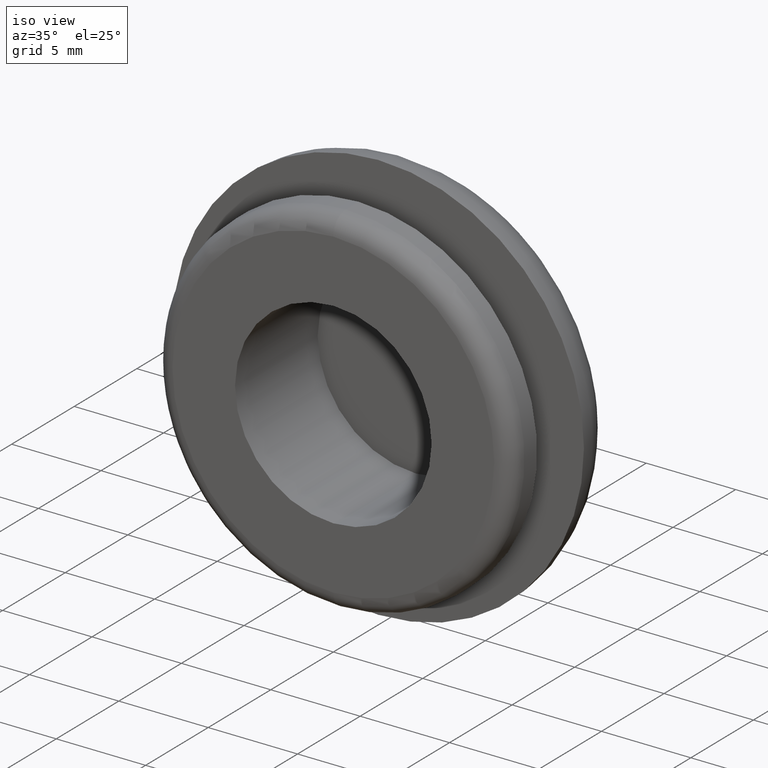
[diagram: clean part render]
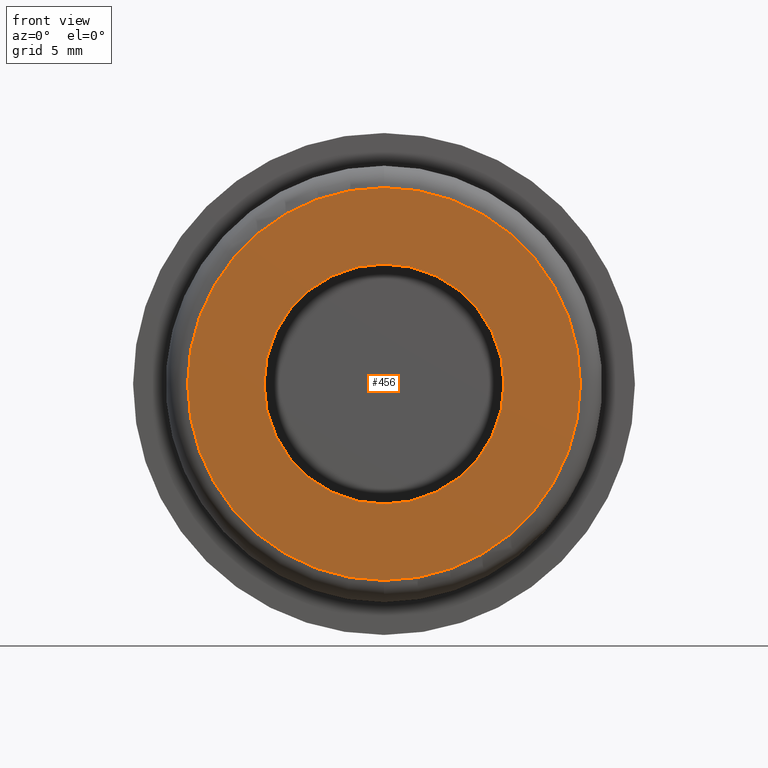
[diagram: tour spotlight — one face highlighted and labeled with its STEP entity id]
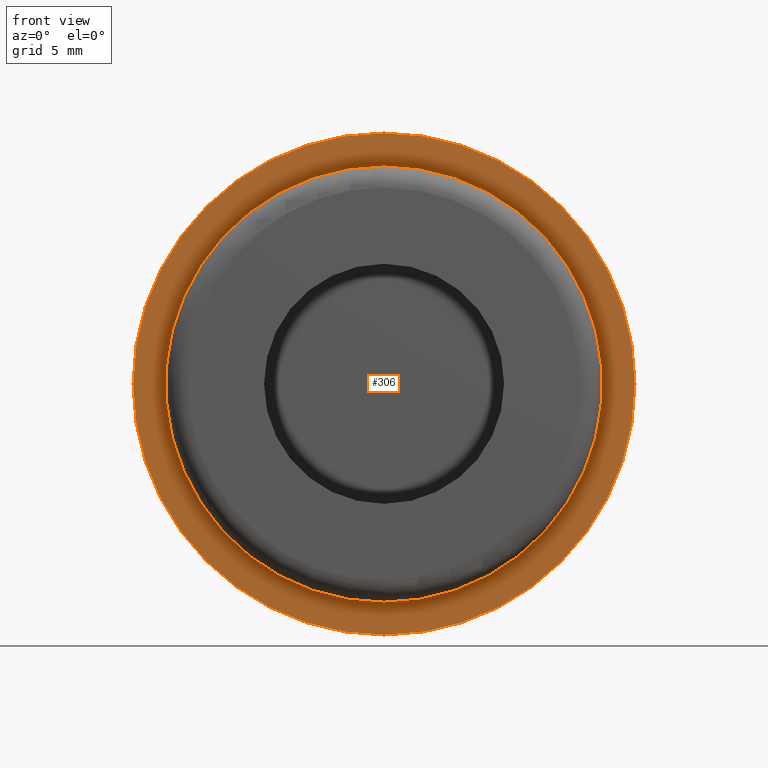
[diagram: tour spotlight — one face highlighted and labeled with its STEP entity id]
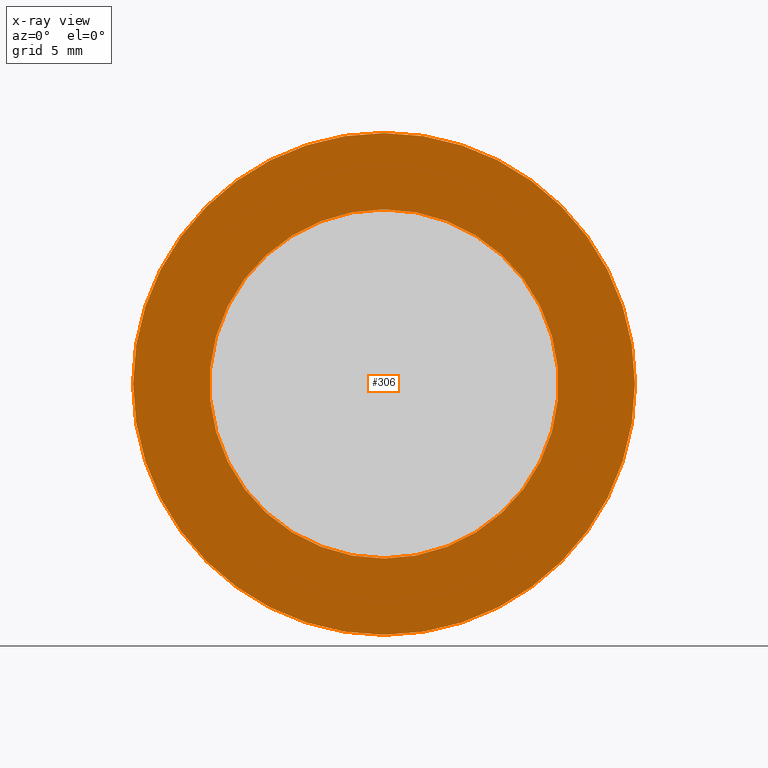
[diagram: x-ray of the same camera — body ghosted, this tour face saturated]
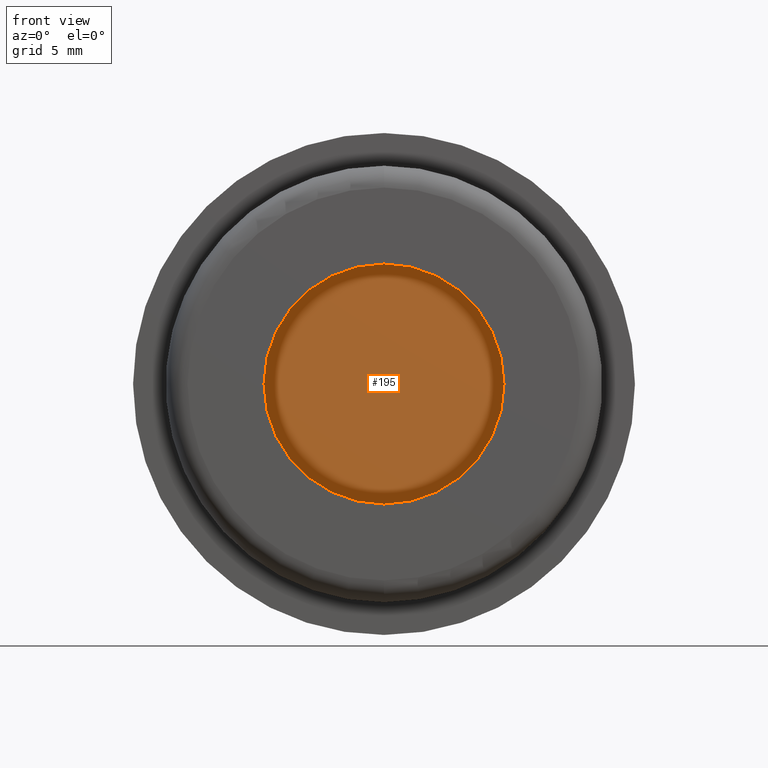
[diagram: tour spotlight — one face highlighted and labeled with its STEP entity id]
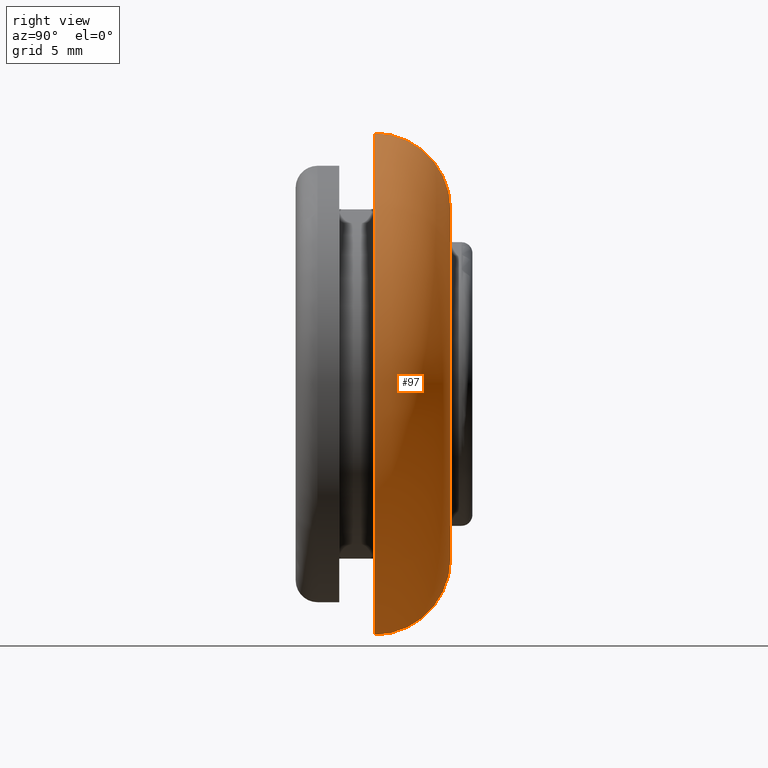
[diagram: tour spotlight — one face highlighted and labeled with its STEP entity id]
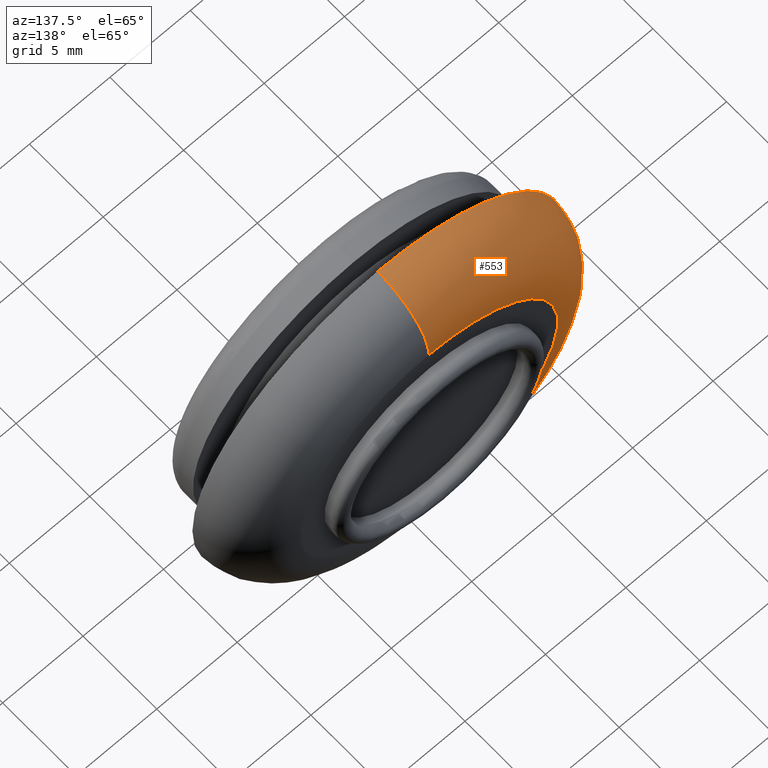
[diagram: tour spotlight — one face highlighted and labeled with its STEP entity id]
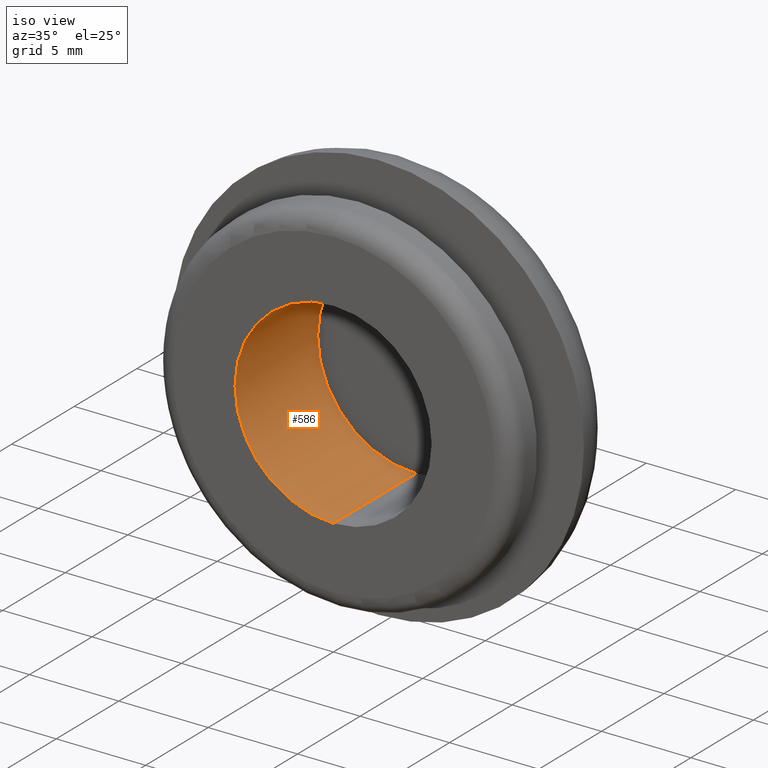
[diagram: tour spotlight — one face highlighted and labeled with its STEP entity id]
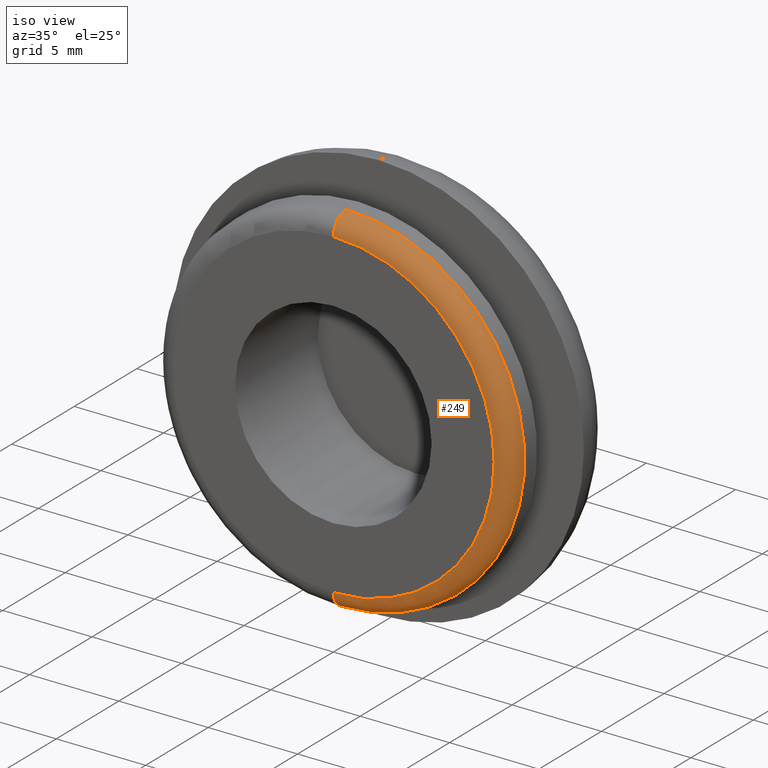
[diagram: tour spotlight — one face highlighted and labeled with its STEP entity id]
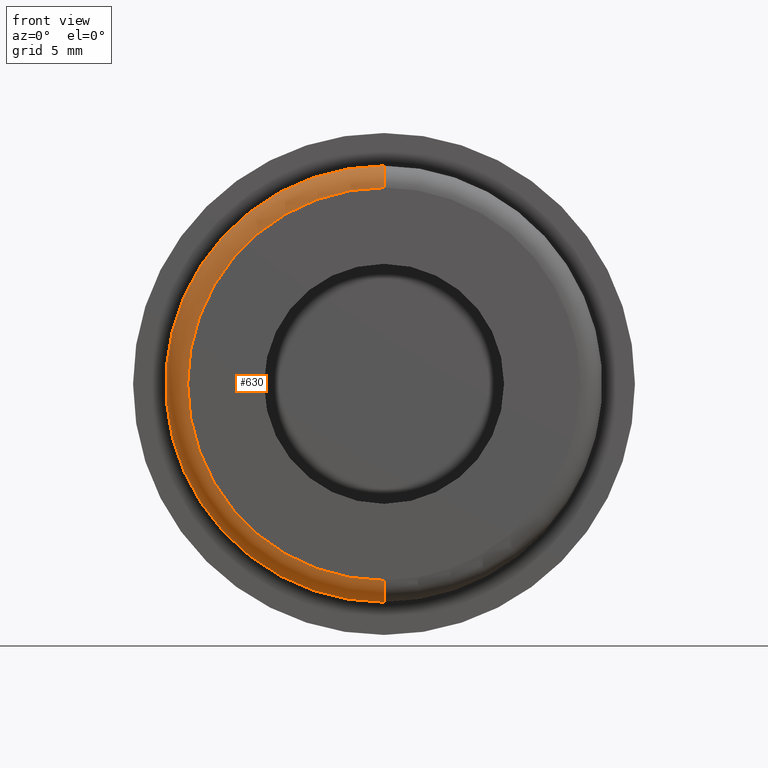
[diagram: tour spotlight — one face highlighted and labeled with its STEP entity id]
A machine part: a face-by-face anatomy tour. The part has 22 B-rep faces; the first image is the clean iso view, then the 8 largest visible faces are spotlighted one at a time (largest first), each with its STEP entity span.

Face 1 — front view, entity #456. In plain terms, the highlighted planar face has unit normal (0, 1, 0).
Definition (entity closure, byte-faithful):
#13 = VERTEX_POINT ( 'NONE', #604 ) ;
#21 = DIRECTION ( 'NONE',  ( 0.0000000000000000000, -1.000000000000000000, 0.0000000000000000000 ) ) ;
#54 = AXIS2_PLACEMENT_3D ( 'NONE', #129, #480, #71 ) ;
#62 = CARTESIAN_POINT ( 'NONE',  ( 0.0000000000000000000, -1.010300241903460100E-015, -3.061515884555945100E-016 ) ) ;
#71 = DIRECTION ( 'NONE',  ( 0.0000000000000000000, 0.0000000000000000000, -1.000000000000000000 ) ) ;
#100 = DIRECTION ( 'NONE',  ( 0.0000000000000000000, -1.000000000000000000, 0.0000000000000000000 ) ) ;
#121 = AXIS2_PLACEMENT_3D ( 'NONE', #531, #432, #125 ) ;
#125 = DIRECTION ( 'NONE',  ( 0.0000000000000000000, 0.0000000000000000000, -1.000000000000000000 ) ) ;
#129 = CARTESIAN_POINT ( 'NONE',  ( 0.0000000000000000000, -1.665334536937735000E-015, -3.061515884555945100E-016 ) ) ;
#135 = DIRECTION ( 'NONE',  ( 0.0000000000000000000, 0.0000000000000000000, 1.000000000000000000 ) ) ;
#136 = CIRCLE ( 'NONE', #54, 9.000000000000000000 ) ;
#196 = CARTESIAN_POINT ( 'NONE',  ( 0.0000000000000000000, -1.010300241903460100E-015, -3.061515884555945100E-016 ) ) ;
#197 = AXIS2_PLACEMENT_3D ( 'NONE', #196, #100, #361 ) ;
#225 = VERTEX_POINT ( 'NONE', #240 ) ;
#232 = CARTESIAN_POINT ( 'NONE',  ( 0.0000000000000000000, -1.337817389420598000E-015, 9.000000000000000000 ) ) ;
#240 = CARTESIAN_POINT ( 'NONE',  ( 0.0000000000000000000, -1.665334536937735000E-015, -9.000000000000000000 ) ) ;
#243 = VERTEX_POINT ( 'NONE', #535 ) ;
#252 = EDGE_CURVE ( 'NONE', #243, #13, #373, .T. ) ;
#261 = AXIS2_PLACEMENT_3D ( 'NONE', #62, #21, #383 ) ;
#271 = EDGE_LOOP ( 'NONE', ( #371, #609 ) ) ;
#275 = VERTEX_POINT ( 'NONE', #305 ) ;
#300 = ORIENTED_EDGE ( 'NONE', *, *, #252, .F. ) ;
#305 = CARTESIAN_POINT ( 'NONE',  ( 1.163414459189985300E-015, -1.665334536937735000E-015, 9.000000000000000000 ) ) ;
#313 = EDGE_LOOP ( 'NONE', ( #300, #481 ) ) ;
#361 = DIRECTION ( 'NONE',  ( 0.0000000000000000000, 0.0000000000000000000, -1.000000000000000000 ) ) ;
#363 = EDGE_CURVE ( 'NONE', #225, #275, #136, .T. ) ;
#370 = AXIS2_PLACEMENT_3D ( 'NONE', #232, #442, #135 ) ;
#371 = ORIENTED_EDGE ( 'NONE', *, *, #363, .T. ) ;
#373 = CIRCLE ( 'NONE', #197, 5.500000000000000000 ) ;
#379 = CIRCLE ( 'NONE', #261, 5.500000000000000000 ) ;
#383 = DIRECTION ( 'NONE',  ( 0.0000000000000000000, 0.0000000000000000000, -1.000000000000000000 ) ) ;
#394 = EDGE_CURVE ( 'NONE', #275, #225, #540, .T. ) ;
#416 = FACE_OUTER_BOUND ( 'NONE', #271, .T. ) ;
#424 = EDGE_CURVE ( 'NONE', #13, #243, #379, .T. ) ;
#429 = PLANE ( 'NONE',  #370 ) ;
#432 = DIRECTION ( 'NONE',  ( 0.0000000000000000000, -1.000000000000000000, 0.0000000000000000000 ) ) ;
#442 = DIRECTION ( 'NONE',  ( 0.0000000000000000000, 1.000000000000000000, 0.0000000000000000000 ) ) ;
#456 = ADVANCED_FACE ( 'NONE', ( #612, #416 ), #429, .F. ) ;
#480 = DIRECTION ( 'NONE',  ( 0.0000000000000000000, -1.000000000000000000, 0.0000000000000000000 ) ) ;
#481 = ORIENTED_EDGE ( 'NONE', *, *, #424, .F. ) ;
#531 = CARTESIAN_POINT ( 'NONE',  ( 0.0000000000000000000, -1.665334536937735000E-015, -3.061515884555945100E-016 ) ) ;
#535 = CARTESIAN_POINT ( 'NONE',  ( 0.0000000000000000000, -1.010300241903460100E-015, -5.500000000000000000 ) ) ;
#540 = CIRCLE ( 'NONE', #121, 9.000000000000000000 ) ;
#604 = CARTESIAN_POINT ( 'NONE',  ( 6.735557395310442000E-016, -1.010300241903460100E-015, 5.500000000000000000 ) ) ;
#609 = ORIENTED_EDGE ( 'NONE', *, *, #394, .T. ) ;
#612 = FACE_BOUND ( 'NONE', #313, .T. ) ;

Face 2 — front view, entity #306. An x-ray twin of the same camera follows (body ghosted, this face saturated) — the face is partly hidden behind the body. In plain terms, the highlighted planar face has unit normal (0, 1, 0).
Definition (entity closure, byte-faithful):
#3 = DIRECTION ( 'NONE',  ( 0.0000000000000000000, -1.000000000000000000, 0.0000000000000000000 ) ) ;
#25 = DIRECTION ( 'NONE',  ( 0.0000000000000000000, 0.0000000000000000000, -1.000000000000000000 ) ) ;
#26 = CARTESIAN_POINT ( 'NONE',  ( 1.408343819019456400E-015, 3.600000000000000100, 11.50000000000000000 ) ) ;
#39 = CARTESIAN_POINT ( 'NONE',  ( 0.0000000000000000000, 3.600000000000000100, -8.000000000000000000 ) ) ;
#70 = CARTESIAN_POINT ( 'NONE',  ( 0.0000000000000000000, 3.600000000000000100, -3.061515884555945100E-016 ) ) ;
#73 = DIRECTION ( 'NONE',  ( 0.0000000000000000000, -1.000000000000000000, 0.0000000000000000000 ) ) ;
#90 = EDGE_LOOP ( 'NONE', ( #558, #128 ) ) ;
#93 = DIRECTION ( 'NONE',  ( 0.0000000000000000000, -1.000000000000000000, 0.0000000000000000000 ) ) ;
#108 = VERTEX_POINT ( 'NONE', #560 ) ;
#112 = CIRCLE ( 'NONE', #162, 11.50000000000000000 ) ;
#114 = AXIS2_PLACEMENT_3D ( 'NONE', #408, #93, #453 ) ;
#128 = ORIENTED_EDGE ( 'NONE', *, *, #573, .F. ) ;
#132 = DIRECTION ( 'NONE',  ( 0.0000000000000000000, 1.000000000000000000, 0.0000000000000000000 ) ) ;
#145 = AXIS2_PLACEMENT_3D ( 'NONE', #309, #3, #245 ) ;
#162 = AXIS2_PLACEMENT_3D ( 'NONE', #70, #385, #25 ) ;
#168 = CIRCLE ( 'NONE', #114, 8.000000000000000000 ) ;
#182 = DIRECTION ( 'NONE',  ( 0.0000000000000000000, 0.0000000000000000000, 1.000000000000000000 ) ) ;
#210 = ORIENTED_EDGE ( 'NONE', *, *, #265, .T. ) ;
#227 = EDGE_CURVE ( 'NONE', #376, #108, #112, .T. ) ;
#241 = PLANE ( 'NONE',  #471 ) ;
#245 = DIRECTION ( 'NONE',  ( 0.0000000000000000000, 0.0000000000000000000, -1.000000000000000000 ) ) ;
#248 = CIRCLE ( 'NONE', #268, 11.50000000000000000 ) ;
#265 = EDGE_CURVE ( 'NONE', #108, #376, #248, .T. ) ;
#268 = AXIS2_PLACEMENT_3D ( 'NONE', #436, #73, #578 ) ;
#277 = CIRCLE ( 'NONE', #145, 8.000000000000000000 ) ;
#306 = ADVANCED_FACE ( 'NONE', ( #482, #470 ), #241, .F. ) ;
#309 = CARTESIAN_POINT ( 'NONE',  ( 0.0000000000000000000, 3.600000000000000100, -3.061515884555945100E-016 ) ) ;
#326 = EDGE_LOOP ( 'NONE', ( #210, #521 ) ) ;
#346 = VERTEX_POINT ( 'NONE', #39 ) ;
#376 = VERTEX_POINT ( 'NONE', #26 ) ;
#385 = DIRECTION ( 'NONE',  ( 0.0000000000000000000, -1.000000000000000000, 0.0000000000000000000 ) ) ;
#408 = CARTESIAN_POINT ( 'NONE',  ( 0.0000000000000000000, 3.600000000000000100, -3.061515884555945100E-016 ) ) ;
#436 = CARTESIAN_POINT ( 'NONE',  ( 0.0000000000000000000, 3.600000000000000100, -3.061515884555945100E-016 ) ) ;
#446 = CARTESIAN_POINT ( 'NONE',  ( 9.797174393178825700E-016, 3.600000000000000100, 8.000000000000000000 ) ) ;
#453 = DIRECTION ( 'NONE',  ( 0.0000000000000000000, 0.0000000000000000000, -1.000000000000000000 ) ) ;
#470 = FACE_OUTER_BOUND ( 'NONE', #326, .T. ) ;
#471 = AXIS2_PLACEMENT_3D ( 'NONE', #635, #132, #182 ) ;
#482 = FACE_BOUND ( 'NONE', #90, .T. ) ;
#497 = VERTEX_POINT ( 'NONE', #446 ) ;
#521 = ORIENTED_EDGE ( 'NONE', *, *, #227, .T. ) ;
#558 = ORIENTED_EDGE ( 'NONE', *, *, #624, .F. ) ;
#560 = CARTESIAN_POINT ( 'NONE',  ( 0.0000000000000000000, 3.600000000000000100, -11.50000000000000000 ) ) ;
#573 = EDGE_CURVE ( 'NONE', #497, #346, #168, .T. ) ;
#578 = DIRECTION ( 'NONE',  ( 0.0000000000000000000, 0.0000000000000000000, -1.000000000000000000 ) ) ;
#624 = EDGE_CURVE ( 'NONE', #346, #497, #277, .T. ) ;
#635 = CARTESIAN_POINT ( 'NONE',  ( 0.0000000000000000000, 3.600000000000000100, 11.50000000000000000 ) ) ;

Face 3 — front view, entity #195. In plain terms, the highlighted planar face has unit normal (0, 1, 0).
Definition (entity closure, byte-faithful):
#18 = EDGE_CURVE ( 'NONE', #155, #552, #526, .T. ) ;
#28 = DIRECTION ( 'NONE',  ( 0.0000000000000000000, 0.0000000000000000000, 1.000000000000000000 ) ) ;
#29 = CARTESIAN_POINT ( 'NONE',  ( 0.0000000000000000000, 6.599999999999999600, -3.061515884555945100E-016 ) ) ;
#36 = CARTESIAN_POINT ( 'NONE',  ( 0.0000000000000000000, 6.599999999999999600, -3.061515884555945100E-016 ) ) ;
#50 = PLANE ( 'NONE',  #246 ) ;
#52 = ORIENTED_EDGE ( 'NONE', *, *, #18, .T. ) ;
#123 = DIRECTION ( 'NONE',  ( 0.0000000000000000000, -1.000000000000000000, 0.0000000000000000000 ) ) ;
#155 = VERTEX_POINT ( 'NONE', #490 ) ;
#184 = AXIS2_PLACEMENT_3D ( 'NONE', #36, #445, #303 ) ;
#195 = ADVANCED_FACE ( 'NONE', ( #641 ), #50, .F. ) ;
#246 = AXIS2_PLACEMENT_3D ( 'NONE', #623, #279, #28 ) ;
#279 = DIRECTION ( 'NONE',  ( 0.0000000000000000000, 1.000000000000000000, 0.0000000000000000000 ) ) ;
#303 = DIRECTION ( 'NONE',  ( 0.0000000000000000000, 0.0000000000000000000, -1.000000000000000000 ) ) ;
#356 = EDGE_LOOP ( 'NONE', ( #52, #395 ) ) ;
#395 = ORIENTED_EDGE ( 'NONE', *, *, #536, .T. ) ;
#427 = AXIS2_PLACEMENT_3D ( 'NONE', #29, #123, #447 ) ;
#445 = DIRECTION ( 'NONE',  ( 0.0000000000000000000, -1.000000000000000000, 0.0000000000000000000 ) ) ;
#447 = DIRECTION ( 'NONE',  ( 0.0000000000000000000, 0.0000000000000000000, -1.000000000000000000 ) ) ;
#490 = CARTESIAN_POINT ( 'NONE',  ( 0.0000000000000000000, 6.599999999999999600, -5.500000000000000000 ) ) ;
#526 = CIRCLE ( 'NONE', #184, 5.500000000000000000 ) ;
#536 = EDGE_CURVE ( 'NONE', #552, #155, #605, .T. ) ;
#552 = VERTEX_POINT ( 'NONE', #637 ) ;
#605 = CIRCLE ( 'NONE', #427, 5.500000000000000000 ) ;
#623 = CARTESIAN_POINT ( 'NONE',  ( 0.0000000000000000000, 6.599999999999999600, 5.500000000000000000 ) ) ;
#637 = CARTESIAN_POINT ( 'NONE',  ( 6.735557395310442000E-016, 6.599999999999999600, 5.500000000000000000 ) ) ;
#641 = FACE_OUTER_BOUND ( 'NONE', #356, .T. ) ;

Face 4 — right view, entity #97. In plain terms, the highlighted toroidal blend (fillet) surface has major radius 8 mm and minor (blend) radius 3.5 mm.
Definition (entity closure, byte-faithful):
#26 = CARTESIAN_POINT ( 'NONE',  ( 1.408343819019456400E-015, 3.600000000000000100, 11.50000000000000000 ) ) ;
#37 = CARTESIAN_POINT ( 'NONE',  ( 0.0000000000000000000, 7.100000000000000500, -3.061515884555945100E-016 ) ) ;
#38 = DIRECTION ( 'NONE',  ( -1.224646799147353500E-016, 0.0000000000000000000, -1.000000000000000000 ) ) ;
#44 = ORIENTED_EDGE ( 'NONE', *, *, #265, .F. ) ;
#45 = VERTEX_POINT ( 'NONE', #150 ) ;
#65 = DIRECTION ( 'NONE',  ( 0.0000000000000000000, 0.0000000000000000000, -1.000000000000000000 ) ) ;
#73 = DIRECTION ( 'NONE',  ( 0.0000000000000000000, -1.000000000000000000, 0.0000000000000000000 ) ) ;
#78 = DIRECTION ( 'NONE',  ( -1.000000000000000000, -0.0000000000000000000, -0.0000000000000000000 ) ) ;
#82 = TOROIDAL_SURFACE ( 'NONE', #428, 8.000000000000000000, 3.500000000000000000 ) ;
#84 = DIRECTION ( 'NONE',  ( 0.0000000000000000000, 0.0000000000000000000, -1.000000000000000000 ) ) ;
#89 = CARTESIAN_POINT ( 'NONE',  ( 9.797174393178825700E-016, 3.600000000000000100, 8.000000000000000000 ) ) ;
#97 = ADVANCED_FACE ( 'NONE', ( #555 ), #82, .T. ) ;
#108 = VERTEX_POINT ( 'NONE', #560 ) ;
#109 = AXIS2_PLACEMENT_3D ( 'NONE', #222, #78, #390 ) ;
#118 = CIRCLE ( 'NONE', #321, 8.000000000000000000 ) ;
#124 = DIRECTION ( 'NONE',  ( 0.0000000000000000000, -1.000000000000000000, 0.0000000000000000000 ) ) ;
#133 = ORIENTED_EDGE ( 'NONE', *, *, #468, .T. ) ;
#150 = CARTESIAN_POINT ( 'NONE',  ( 1.194030629168669500E-015, 7.100000000000000500, 8.000000000000000000 ) ) ;
#190 = EDGE_CURVE ( 'NONE', #448, #108, #516, .T. ) ;
#222 = CARTESIAN_POINT ( 'NONE',  ( 0.0000000000000000000, 3.600000000000000100, -8.000000000000000000 ) ) ;
#248 = CIRCLE ( 'NONE', #268, 11.50000000000000000 ) ;
#265 = EDGE_CURVE ( 'NONE', #108, #376, #248, .T. ) ;
#267 = EDGE_LOOP ( 'NONE', ( #133, #493, #44, #421 ) ) ;
#268 = AXIS2_PLACEMENT_3D ( 'NONE', #436, #73, #578 ) ;
#302 = EDGE_CURVE ( 'NONE', #45, #376, #610, .T. ) ;
#321 = AXIS2_PLACEMENT_3D ( 'NONE', #37, #400, #84 ) ;
#325 = CARTESIAN_POINT ( 'NONE',  ( 0.0000000000000000000, 3.600000000000000100, 0.0000000000000000000 ) ) ;
#343 = AXIS2_PLACEMENT_3D ( 'NONE', #89, #402, #38 ) ;
#376 = VERTEX_POINT ( 'NONE', #26 ) ;
#378 = CARTESIAN_POINT ( 'NONE',  ( 0.0000000000000000000, 7.100000000000000500, -8.000000000000000000 ) ) ;
#390 = DIRECTION ( 'NONE',  ( 0.0000000000000000000, 0.0000000000000000000, 1.000000000000000000 ) ) ;
#400 = DIRECTION ( 'NONE',  ( 0.0000000000000000000, -1.000000000000000000, 0.0000000000000000000 ) ) ;
#402 = DIRECTION ( 'NONE',  ( 1.000000000000000000, 0.0000000000000000000, -1.224646799147353200E-016 ) ) ;
#421 = ORIENTED_EDGE ( 'NONE', *, *, #190, .F. ) ;
#428 = AXIS2_PLACEMENT_3D ( 'NONE', #325, #124, #65 ) ;
#436 = CARTESIAN_POINT ( 'NONE',  ( 0.0000000000000000000, 3.600000000000000100, -3.061515884555945100E-016 ) ) ;
#448 = VERTEX_POINT ( 'NONE', #378 ) ;
#468 = EDGE_CURVE ( 'NONE', #448, #45, #118, .T. ) ;
#493 = ORIENTED_EDGE ( 'NONE', *, *, #302, .T. ) ;
#516 = CIRCLE ( 'NONE', #109, 3.499999999999999600 ) ;
#555 = FACE_OUTER_BOUND ( 'NONE', #267, .T. ) ;
#560 = CARTESIAN_POINT ( 'NONE',  ( 0.0000000000000000000, 3.600000000000000100, -11.50000000000000000 ) ) ;
#578 = DIRECTION ( 'NONE',  ( 0.0000000000000000000, 0.0000000000000000000, -1.000000000000000000 ) ) ;
#610 = CIRCLE ( 'NONE', #343, 3.499999999999999600 ) ;

Face 5 — auxiliary view, entity #553. In plain terms, the highlighted toroidal blend (fillet) surface has major radius 8 mm and minor (blend) radius 3.5 mm.
Definition (entity closure, byte-faithful):
#10 = ORIENTED_EDGE ( 'NONE', *, *, #227, .F. ) ;
#11 = AXIS2_PLACEMENT_3D ( 'NONE', #476, #622, #591 ) ;
#25 = DIRECTION ( 'NONE',  ( 0.0000000000000000000, 0.0000000000000000000, -1.000000000000000000 ) ) ;
#26 = CARTESIAN_POINT ( 'NONE',  ( 1.408343819019456400E-015, 3.600000000000000100, 11.50000000000000000 ) ) ;
#38 = DIRECTION ( 'NONE',  ( -1.224646799147353500E-016, 0.0000000000000000000, -1.000000000000000000 ) ) ;
#45 = VERTEX_POINT ( 'NONE', #150 ) ;
#59 = TOROIDAL_SURFACE ( 'NONE', #11, 8.000000000000000000, 3.500000000000000000 ) ;
#70 = CARTESIAN_POINT ( 'NONE',  ( 0.0000000000000000000, 3.600000000000000100, -3.061515884555945100E-016 ) ) ;
#78 = DIRECTION ( 'NONE',  ( -1.000000000000000000, -0.0000000000000000000, -0.0000000000000000000 ) ) ;
#79 = EDGE_CURVE ( 'NONE', #45, #448, #154, .T. ) ;
#89 = CARTESIAN_POINT ( 'NONE',  ( 9.797174393178825700E-016, 3.600000000000000100, 8.000000000000000000 ) ) ;
#108 = VERTEX_POINT ( 'NONE', #560 ) ;
#109 = AXIS2_PLACEMENT_3D ( 'NONE', #222, #78, #390 ) ;
#112 = CIRCLE ( 'NONE', #162, 11.50000000000000000 ) ;
#150 = CARTESIAN_POINT ( 'NONE',  ( 1.194030629168669500E-015, 7.100000000000000500, 8.000000000000000000 ) ) ;
#154 = CIRCLE ( 'NONE', #322, 8.000000000000000000 ) ;
#159 = EDGE_LOOP ( 'NONE', ( #513, #539, #219, #10 ) ) ;
#162 = AXIS2_PLACEMENT_3D ( 'NONE', #70, #385, #25 ) ;
#190 = EDGE_CURVE ( 'NONE', #448, #108, #516, .T. ) ;
#219 = ORIENTED_EDGE ( 'NONE', *, *, #190, .T. ) ;
#222 = CARTESIAN_POINT ( 'NONE',  ( 0.0000000000000000000, 3.600000000000000100, -8.000000000000000000 ) ) ;
#227 = EDGE_CURVE ( 'NONE', #376, #108, #112, .T. ) ;
#302 = EDGE_CURVE ( 'NONE', #45, #376, #610, .T. ) ;
#322 = AXIS2_PLACEMENT_3D ( 'NONE', #478, #331, #345 ) ;
#331 = DIRECTION ( 'NONE',  ( 0.0000000000000000000, -1.000000000000000000, 0.0000000000000000000 ) ) ;
#343 = AXIS2_PLACEMENT_3D ( 'NONE', #89, #402, #38 ) ;
#345 = DIRECTION ( 'NONE',  ( 0.0000000000000000000, 0.0000000000000000000, -1.000000000000000000 ) ) ;
#376 = VERTEX_POINT ( 'NONE', #26 ) ;
#378 = CARTESIAN_POINT ( 'NONE',  ( 0.0000000000000000000, 7.100000000000000500, -8.000000000000000000 ) ) ;
#385 = DIRECTION ( 'NONE',  ( 0.0000000000000000000, -1.000000000000000000, 0.0000000000000000000 ) ) ;
#390 = DIRECTION ( 'NONE',  ( 0.0000000000000000000, 0.0000000000000000000, 1.000000000000000000 ) ) ;
#402 = DIRECTION ( 'NONE',  ( 1.000000000000000000, 0.0000000000000000000, -1.224646799147353200E-016 ) ) ;
#448 = VERTEX_POINT ( 'NONE', #378 ) ;
#476 = CARTESIAN_POINT ( 'NONE',  ( 0.0000000000000000000, 3.600000000000000100, 0.0000000000000000000 ) ) ;
#478 = CARTESIAN_POINT ( 'NONE',  ( 0.0000000000000000000, 7.100000000000000500, -3.061515884555945100E-016 ) ) ;
#513 = ORIENTED_EDGE ( 'NONE', *, *, #302, .F. ) ;
#516 = CIRCLE ( 'NONE', #109, 3.499999999999999600 ) ;
#539 = ORIENTED_EDGE ( 'NONE', *, *, #79, .T. ) ;
#553 = ADVANCED_FACE ( 'NONE', ( #575 ), #59, .T. ) ;
#560 = CARTESIAN_POINT ( 'NONE',  ( 0.0000000000000000000, 3.600000000000000100, -11.50000000000000000 ) ) ;
#575 = FACE_OUTER_BOUND ( 'NONE', #159, .T. ) ;
#591 = DIRECTION ( 'NONE',  ( 0.0000000000000000000, 0.0000000000000000000, -1.000000000000000000 ) ) ;
#610 = CIRCLE ( 'NONE', #343, 3.499999999999999600 ) ;
#622 = DIRECTION ( 'NONE',  ( 0.0000000000000000000, -1.000000000000000000, 0.0000000000000000000 ) ) ;

Face 6 — iso view, entity #586. In plain terms, the highlighted cylindrical surface (partial cylindrical patch) has radius 5.5 mm, axis along (0, -1, 0).
Definition (entity closure, byte-faithful):
#13 = VERTEX_POINT ( 'NONE', #604 ) ;
#21 = DIRECTION ( 'NONE',  ( 0.0000000000000000000, -1.000000000000000000, 0.0000000000000000000 ) ) ;
#29 = CARTESIAN_POINT ( 'NONE',  ( 0.0000000000000000000, 6.599999999999999600, -3.061515884555945100E-016 ) ) ;
#62 = CARTESIAN_POINT ( 'NONE',  ( 0.0000000000000000000, -1.010300241903460100E-015, -3.061515884555945100E-016 ) ) ;
#123 = DIRECTION ( 'NONE',  ( 0.0000000000000000000, -1.000000000000000000, 0.0000000000000000000 ) ) ;
#139 = DIRECTION ( 'NONE',  ( 0.0000000000000000000, 0.0000000000000000000, -1.000000000000000000 ) ) ;
#143 = DIRECTION ( 'NONE',  ( 0.0000000000000000000, -1.000000000000000000, 0.0000000000000000000 ) ) ;
#155 = VERTEX_POINT ( 'NONE', #490 ) ;
#157 = CYLINDRICAL_SURFACE ( 'NONE', #213, 5.500000000000000000 ) ;
#165 = DIRECTION ( 'NONE',  ( 0.0000000000000000000, -1.000000000000000000, 0.0000000000000000000 ) ) ;
#191 = EDGE_LOOP ( 'NONE', ( #452, #636, #488, #518 ) ) ;
#213 = AXIS2_PLACEMENT_3D ( 'NONE', #549, #638, #139 ) ;
#243 = VERTEX_POINT ( 'NONE', #535 ) ;
#261 = AXIS2_PLACEMENT_3D ( 'NONE', #62, #21, #383 ) ;
#323 = VECTOR ( 'NONE', #143, 1000.000000000000000 ) ;
#332 = EDGE_CURVE ( 'NONE', #155, #243, #337, .T. ) ;
#337 = LINE ( 'NONE', #538, #359 ) ;
#359 = VECTOR ( 'NONE', #165, 1000.000000000000000 ) ;
#379 = CIRCLE ( 'NONE', #261, 5.500000000000000000 ) ;
#383 = DIRECTION ( 'NONE',  ( 0.0000000000000000000, 0.0000000000000000000, -1.000000000000000000 ) ) ;
#424 = EDGE_CURVE ( 'NONE', #13, #243, #379, .T. ) ;
#427 = AXIS2_PLACEMENT_3D ( 'NONE', #29, #123, #447 ) ;
#430 = LINE ( 'NONE', #498, #323 ) ;
#447 = DIRECTION ( 'NONE',  ( 0.0000000000000000000, 0.0000000000000000000, -1.000000000000000000 ) ) ;
#449 = FACE_OUTER_BOUND ( 'NONE', #191, .T. ) ;
#452 = ORIENTED_EDGE ( 'NONE', *, *, #536, .F. ) ;
#488 = ORIENTED_EDGE ( 'NONE', *, *, #424, .T. ) ;
#490 = CARTESIAN_POINT ( 'NONE',  ( 0.0000000000000000000, 6.599999999999999600, -5.500000000000000000 ) ) ;
#498 = CARTESIAN_POINT ( 'NONE',  ( 6.735557395310442000E-016, 0.0000000000000000000, 5.500000000000000000 ) ) ;
#518 = ORIENTED_EDGE ( 'NONE', *, *, #332, .F. ) ;
#535 = CARTESIAN_POINT ( 'NONE',  ( 0.0000000000000000000, -1.010300241903460100E-015, -5.500000000000000000 ) ) ;
#536 = EDGE_CURVE ( 'NONE', #552, #155, #605, .T. ) ;
#538 = CARTESIAN_POINT ( 'NONE',  ( 0.0000000000000000000, 0.0000000000000000000, -5.500000000000000000 ) ) ;
#549 = CARTESIAN_POINT ( 'NONE',  ( 0.0000000000000000000, 0.0000000000000000000, -3.061515884555945100E-016 ) ) ;
#552 = VERTEX_POINT ( 'NONE', #637 ) ;
#586 = ADVANCED_FACE ( 'NONE', ( #449 ), #157, .F. ) ;
#597 = EDGE_CURVE ( 'NONE', #552, #13, #430, .T. ) ;
#604 = CARTESIAN_POINT ( 'NONE',  ( 6.735557395310442000E-016, -1.010300241903460100E-015, 5.500000000000000000 ) ) ;
#605 = CIRCLE ( 'NONE', #427, 5.500000000000000000 ) ;
#636 = ORIENTED_EDGE ( 'NONE', *, *, #597, .T. ) ;
#637 = CARTESIAN_POINT ( 'NONE',  ( 6.735557395310442000E-016, 6.599999999999999600, 5.500000000000000000 ) ) ;
#638 = DIRECTION ( 'NONE',  ( 0.0000000000000000000, -1.000000000000000000, 0.0000000000000000000 ) ) ;

Face 7 — iso view, entity #249. In plain terms, the highlighted toroidal blend (fillet) surface has major radius 9 mm and minor (blend) radius 1 mm.
Definition (entity closure, byte-faithful):
#1 = VERTEX_POINT ( 'NONE', #2 ) ;
#2 = CARTESIAN_POINT ( 'NONE',  ( 0.0000000000000000000, 1.000000000000000000, -10.00000000000000000 ) ) ;
#51 = CARTESIAN_POINT ( 'NONE',  ( 1.102182119232617700E-015, 1.000000000000000000, 9.000000000000000000 ) ) ;
#53 = DIRECTION ( 'NONE',  ( 0.0000000000000000000, 0.0000000000000000000, -1.000000000000000000 ) ) ;
#54 = AXIS2_PLACEMENT_3D ( 'NONE', #129, #480, #71 ) ;
#67 = AXIS2_PLACEMENT_3D ( 'NONE', #231, #130, #171 ) ;
#71 = DIRECTION ( 'NONE',  ( 0.0000000000000000000, 0.0000000000000000000, -1.000000000000000000 ) ) ;
#98 = DIRECTION ( 'NONE',  ( 0.0000000000000000000, -1.000000000000000000, 0.0000000000000000000 ) ) ;
#127 = EDGE_CURVE ( 'NONE', #1, #272, #297, .T. ) ;
#129 = CARTESIAN_POINT ( 'NONE',  ( 0.0000000000000000000, -1.665334536937735000E-015, -3.061515884555945100E-016 ) ) ;
#130 = DIRECTION ( 'NONE',  ( -1.000000000000000000, -0.0000000000000000000, -0.0000000000000000000 ) ) ;
#136 = CIRCLE ( 'NONE', #54, 9.000000000000000000 ) ;
#171 = DIRECTION ( 'NONE',  ( 0.0000000000000000000, 0.0000000000000000000, 1.000000000000000000 ) ) ;
#179 = DIRECTION ( 'NONE',  ( -1.224646799147353500E-016, 0.0000000000000000000, -1.000000000000000000 ) ) ;
#192 = EDGE_CURVE ( 'NONE', #1, #225, #410, .T. ) ;
#198 = CARTESIAN_POINT ( 'NONE',  ( 1.224646799147353300E-015, 1.000000000000000000, 10.00000000000000000 ) ) ;
#225 = VERTEX_POINT ( 'NONE', #240 ) ;
#231 = CARTESIAN_POINT ( 'NONE',  ( 0.0000000000000000000, 1.000000000000000000, -9.000000000000000000 ) ) ;
#236 = AXIS2_PLACEMENT_3D ( 'NONE', #338, #435, #515 ) ;
#240 = CARTESIAN_POINT ( 'NONE',  ( 0.0000000000000000000, -1.665334536937735000E-015, -9.000000000000000000 ) ) ;
#249 = ADVANCED_FACE ( 'NONE', ( #621 ), #500, .T. ) ;
#272 = VERTEX_POINT ( 'NONE', #198 ) ;
#275 = VERTEX_POINT ( 'NONE', #305 ) ;
#286 = AXIS2_PLACEMENT_3D ( 'NONE', #51, #646, #179 ) ;
#297 = CIRCLE ( 'NONE', #527, 10.00000000000000000 ) ;
#305 = CARTESIAN_POINT ( 'NONE',  ( 1.163414459189985300E-015, -1.665334536937735000E-015, 9.000000000000000000 ) ) ;
#334 = ORIENTED_EDGE ( 'NONE', *, *, #127, .T. ) ;
#338 = CARTESIAN_POINT ( 'NONE',  ( 0.0000000000000000000, 1.000000000000000000, 0.0000000000000000000 ) ) ;
#363 = EDGE_CURVE ( 'NONE', #225, #275, #136, .T. ) ;
#407 = ORIENTED_EDGE ( 'NONE', *, *, #363, .F. ) ;
#410 = CIRCLE ( 'NONE', #67, 0.9999999999999991100 ) ;
#435 = DIRECTION ( 'NONE',  ( 0.0000000000000000000, -1.000000000000000000, 0.0000000000000000000 ) ) ;
#454 = CARTESIAN_POINT ( 'NONE',  ( 0.0000000000000000000, 1.000000000000000000, -3.061515884555945100E-016 ) ) ;
#480 = DIRECTION ( 'NONE',  ( 0.0000000000000000000, -1.000000000000000000, 0.0000000000000000000 ) ) ;
#500 = TOROIDAL_SURFACE ( 'NONE', #236, 9.000000000000000000, 1.000000000000000000 ) ;
#515 = DIRECTION ( 'NONE',  ( 0.0000000000000000000, 0.0000000000000000000, -1.000000000000000000 ) ) ;
#517 = ORIENTED_EDGE ( 'NONE', *, *, #192, .F. ) ;
#527 = AXIS2_PLACEMENT_3D ( 'NONE', #454, #98, #53 ) ;
#530 = CIRCLE ( 'NONE', #286, 0.9999999999999991100 ) ;
#567 = EDGE_LOOP ( 'NONE', ( #334, #619, #407, #517 ) ) ;
#619 = ORIENTED_EDGE ( 'NONE', *, *, #634, .T. ) ;
#621 = FACE_OUTER_BOUND ( 'NONE', #567, .T. ) ;
#634 = EDGE_CURVE ( 'NONE', #272, #275, #530, .T. ) ;
#646 = DIRECTION ( 'NONE',  ( 1.000000000000000000, 0.0000000000000000000, -1.224646799147353200E-016 ) ) ;

Face 8 — front view, entity #630. In plain terms, the highlighted toroidal blend (fillet) surface has major radius 9 mm and minor (blend) radius 1 mm.
Definition (entity closure, byte-faithful):
#1 = VERTEX_POINT ( 'NONE', #2 ) ;
#2 = CARTESIAN_POINT ( 'NONE',  ( 0.0000000000000000000, 1.000000000000000000, -10.00000000000000000 ) ) ;
#5 = ORIENTED_EDGE ( 'NONE', *, *, #287, .T. ) ;
#8 = TOROIDAL_SURFACE ( 'NONE', #317, 9.000000000000000000, 1.000000000000000000 ) ;
#51 = CARTESIAN_POINT ( 'NONE',  ( 1.102182119232617700E-015, 1.000000000000000000, 9.000000000000000000 ) ) ;
#67 = AXIS2_PLACEMENT_3D ( 'NONE', #231, #130, #171 ) ;
#95 = CIRCLE ( 'NONE', #307, 10.00000000000000000 ) ;
#113 = ORIENTED_EDGE ( 'NONE', *, *, #634, .F. ) ;
#121 = AXIS2_PLACEMENT_3D ( 'NONE', #531, #432, #125 ) ;
#125 = DIRECTION ( 'NONE',  ( 0.0000000000000000000, 0.0000000000000000000, -1.000000000000000000 ) ) ;
#130 = DIRECTION ( 'NONE',  ( -1.000000000000000000, -0.0000000000000000000, -0.0000000000000000000 ) ) ;
#171 = DIRECTION ( 'NONE',  ( 0.0000000000000000000, 0.0000000000000000000, 1.000000000000000000 ) ) ;
#179 = DIRECTION ( 'NONE',  ( -1.224646799147353500E-016, 0.0000000000000000000, -1.000000000000000000 ) ) ;
#192 = EDGE_CURVE ( 'NONE', #1, #225, #410, .T. ) ;
#198 = CARTESIAN_POINT ( 'NONE',  ( 1.224646799147353300E-015, 1.000000000000000000, 10.00000000000000000 ) ) ;
#204 = CARTESIAN_POINT ( 'NONE',  ( 0.0000000000000000000, 1.000000000000000000, 0.0000000000000000000 ) ) ;
#225 = VERTEX_POINT ( 'NONE', #240 ) ;
#231 = CARTESIAN_POINT ( 'NONE',  ( 0.0000000000000000000, 1.000000000000000000, -9.000000000000000000 ) ) ;
#240 = CARTESIAN_POINT ( 'NONE',  ( 0.0000000000000000000, -1.665334536937735000E-015, -9.000000000000000000 ) ) ;
#272 = VERTEX_POINT ( 'NONE', #198 ) ;
#273 = DIRECTION ( 'NONE',  ( 0.0000000000000000000, -1.000000000000000000, 0.0000000000000000000 ) ) ;
#275 = VERTEX_POINT ( 'NONE', #305 ) ;
#286 = AXIS2_PLACEMENT_3D ( 'NONE', #51, #646, #179 ) ;
#287 = EDGE_CURVE ( 'NONE', #272, #1, #95, .T. ) ;
#296 = FACE_OUTER_BOUND ( 'NONE', #613, .T. ) ;
#305 = CARTESIAN_POINT ( 'NONE',  ( 1.163414459189985300E-015, -1.665334536937735000E-015, 9.000000000000000000 ) ) ;
#307 = AXIS2_PLACEMENT_3D ( 'NONE', #574, #273, #472 ) ;
#317 = AXIS2_PLACEMENT_3D ( 'NONE', #204, #607, #600 ) ;
#394 = EDGE_CURVE ( 'NONE', #275, #225, #540, .T. ) ;
#410 = CIRCLE ( 'NONE', #67, 0.9999999999999991100 ) ;
#432 = DIRECTION ( 'NONE',  ( 0.0000000000000000000, -1.000000000000000000, 0.0000000000000000000 ) ) ;
#466 = ORIENTED_EDGE ( 'NONE', *, *, #394, .F. ) ;
#472 = DIRECTION ( 'NONE',  ( 0.0000000000000000000, 0.0000000000000000000, -1.000000000000000000 ) ) ;
#530 = CIRCLE ( 'NONE', #286, 0.9999999999999991100 ) ;
#531 = CARTESIAN_POINT ( 'NONE',  ( 0.0000000000000000000, -1.665334536937735000E-015, -3.061515884555945100E-016 ) ) ;
#540 = CIRCLE ( 'NONE', #121, 9.000000000000000000 ) ;
#574 = CARTESIAN_POINT ( 'NONE',  ( 0.0000000000000000000, 1.000000000000000000, -3.061515884555945100E-016 ) ) ;
#600 = DIRECTION ( 'NONE',  ( 0.0000000000000000000, 0.0000000000000000000, -1.000000000000000000 ) ) ;
#607 = DIRECTION ( 'NONE',  ( 0.0000000000000000000, -1.000000000000000000, 0.0000000000000000000 ) ) ;
#613 = EDGE_LOOP ( 'NONE', ( #113, #5, #639, #466 ) ) ;
#630 = ADVANCED_FACE ( 'NONE', ( #296 ), #8, .T. ) ;
#634 = EDGE_CURVE ( 'NONE', #272, #275, #530, .T. ) ;
#639 = ORIENTED_EDGE ( 'NONE', *, *, #192, .T. ) ;
#646 = DIRECTION ( 'NONE',  ( 1.000000000000000000, 0.0000000000000000000, -1.224646799147353200E-016 ) ) ;